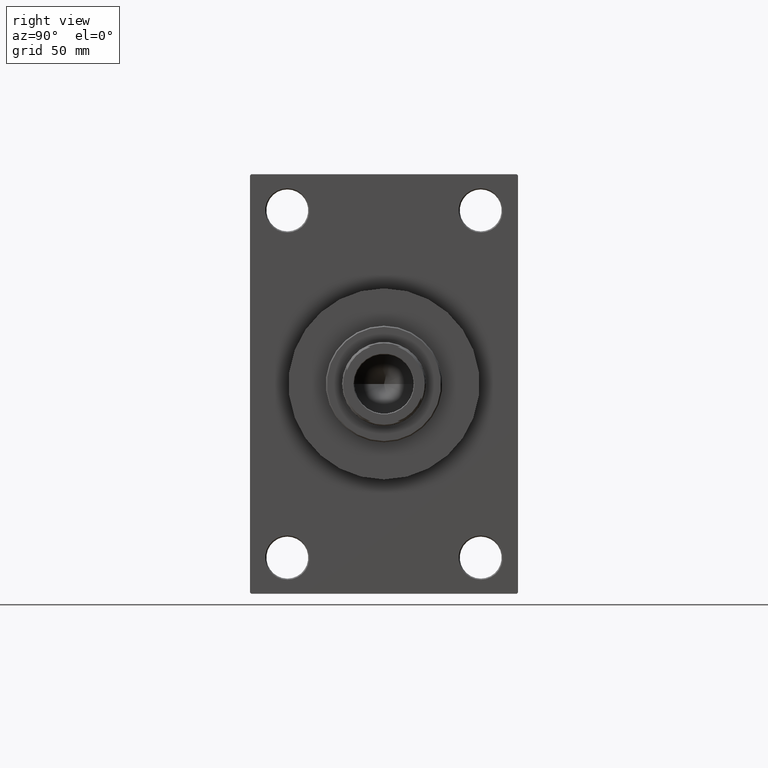
[diagram: clean part render]
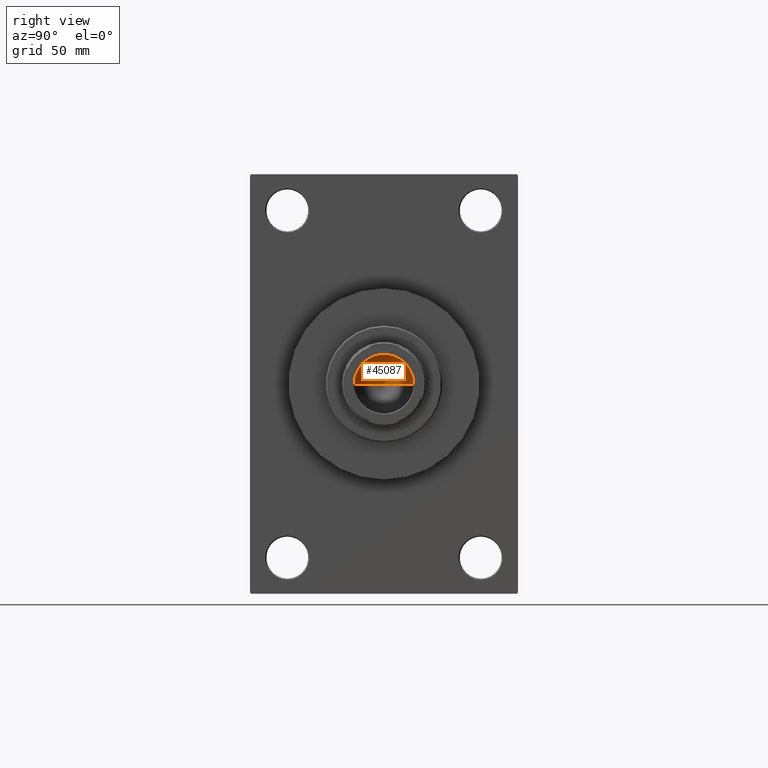
[diagram: same view with one face highlighted and labeled with its STEP entity id]
A machine part, right view. The second image highlights one B-rep face of the part: STEP entity #45087.
In plain terms, the highlighted conical surface has half-angle 59 deg.
Its self-contained STEP definition (entity closure, byte-faithful):
#505 = CONICAL_SURFACE ( 'NONE', #2827, 12.74999999999998934, 1.029744258676653423 ) ;
#2827 = AXIS2_PLACEMENT_3D ( 'NONE', #10886, #25611, #29948 ) ;
#4412 = DIRECTION ( 'NONE',  ( -0.000000000000000000, -0.000000000000000000, 1.000000000000000000 ) ) ;
#4801 = EDGE_CURVE ( 'NONE', #42668, #18765, #6708, .T. ) ;
#5324 = DIRECTION ( 'NONE',  ( -0.8571673007021117785, 1.049727191138617956E-16, 0.5150380749100550437 ) ) ;
#6708 = CIRCLE ( 'NONE', #45194, 12.74999999999998934 ) ;
#7025 = VECTOR ( 'NONE', #5324, 1000.000000000000000 ) ;
#10886 = CARTESIAN_POINT ( 'NONE',  ( 0.000000000000000000, 0.000000000000000000, 121.0000000000000142 ) ) ;
#18765 = VERTEX_POINT ( 'NONE', #43221 ) ;
#19125 = DIRECTION ( 'NONE',  ( 1.000000000000000000, 0.000000000000000000, 0.000000000000000000 ) ) ;
#22962 = LINE ( 'NONE', #34053, #7025 ) ;
#25611 = DIRECTION ( 'NONE',  ( -0.000000000000000000, -0.000000000000000000, 1.000000000000000000 ) ) ;
#27056 = EDGE_LOOP ( 'NONE', ( #45249, #37565, #27385 ) ) ;
#27385 = ORIENTED_EDGE ( 'NONE', *, *, #4801, .T. ) ;
#27425 = LINE ( 'NONE', #28136, #29399 ) ;
#28136 = CARTESIAN_POINT ( 'NONE',  ( 12.74999999999998934, 0.000000000000000000, 121.0000000000000142 ) ) ;
#28366 = DIRECTION ( 'NONE',  ( 0.8571673007021117785, 0.000000000000000000, 0.5150380749100550437 ) ) ;
#29222 = CARTESIAN_POINT ( 'NONE',  ( -12.74999999999998934, 1.561424668912873928E-15, 121.0000000000000142 ) ) ;
#29399 = VECTOR ( 'NONE', #28366, 1000.000000000000000 ) ;
#29948 = DIRECTION ( 'NONE',  ( 1.000000000000000000, 0.000000000000000000, 0.000000000000000000 ) ) ;
#30902 = VERTEX_POINT ( 'NONE', #45787 ) ;
#33108 = EDGE_CURVE ( 'NONE', #30902, #42668, #22962, .T. ) ;
#33690 = EDGE_CURVE ( 'NONE', #30902, #18765, #27425, .T. ) ;
#34053 = CARTESIAN_POINT ( 'NONE',  ( -12.74999999999998934, 1.561424668912873928E-15, 121.0000000000000142 ) ) ;
#37565 = ORIENTED_EDGE ( 'NONE', *, *, #33108, .T. ) ;
#40546 = FACE_OUTER_BOUND ( 'NONE', #27056, .T. ) ;
#41315 = CARTESIAN_POINT ( 'NONE',  ( 0.000000000000000000, 0.000000000000000000, 121.0000000000000142 ) ) ;
#42668 = VERTEX_POINT ( 'NONE', #29222 ) ;
#43221 = CARTESIAN_POINT ( 'NONE',  ( 12.74999999999998934, 0.000000000000000000, 121.0000000000000142 ) ) ;
#45087 = ADVANCED_FACE ( 'NONE', ( #40546 ), #505, .F. ) ;
#45194 = AXIS2_PLACEMENT_3D ( 'NONE', #41315, #4412, #19125 ) ;
#45249 = ORIENTED_EDGE ( 'NONE', *, *, #33690, .F. ) ;
#45787 = CARTESIAN_POINT ( 'NONE',  ( -1.410643066818227497E-14, 0.000000000000000000, 113.3390271073986071 ) ) ;